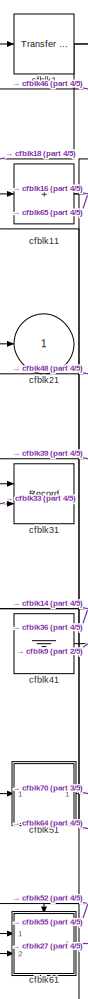
[diagram: root canvas - part 1/5, left side, full height]
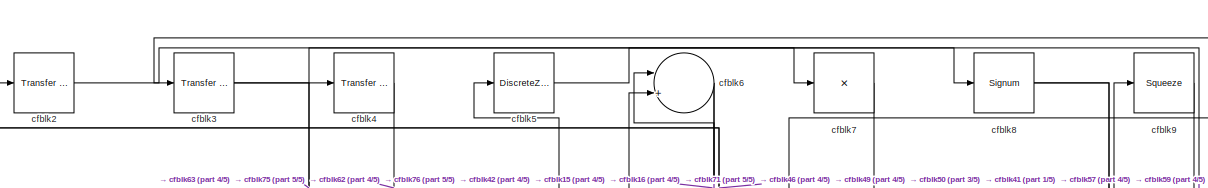
[diagram: root canvas - part 2/5, full width, top band]
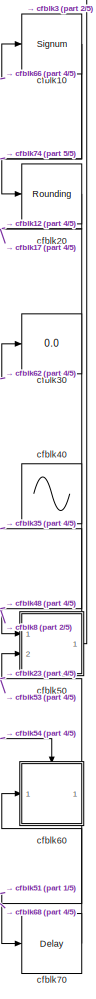
[diagram: root canvas - part 3/5, right side, full height]
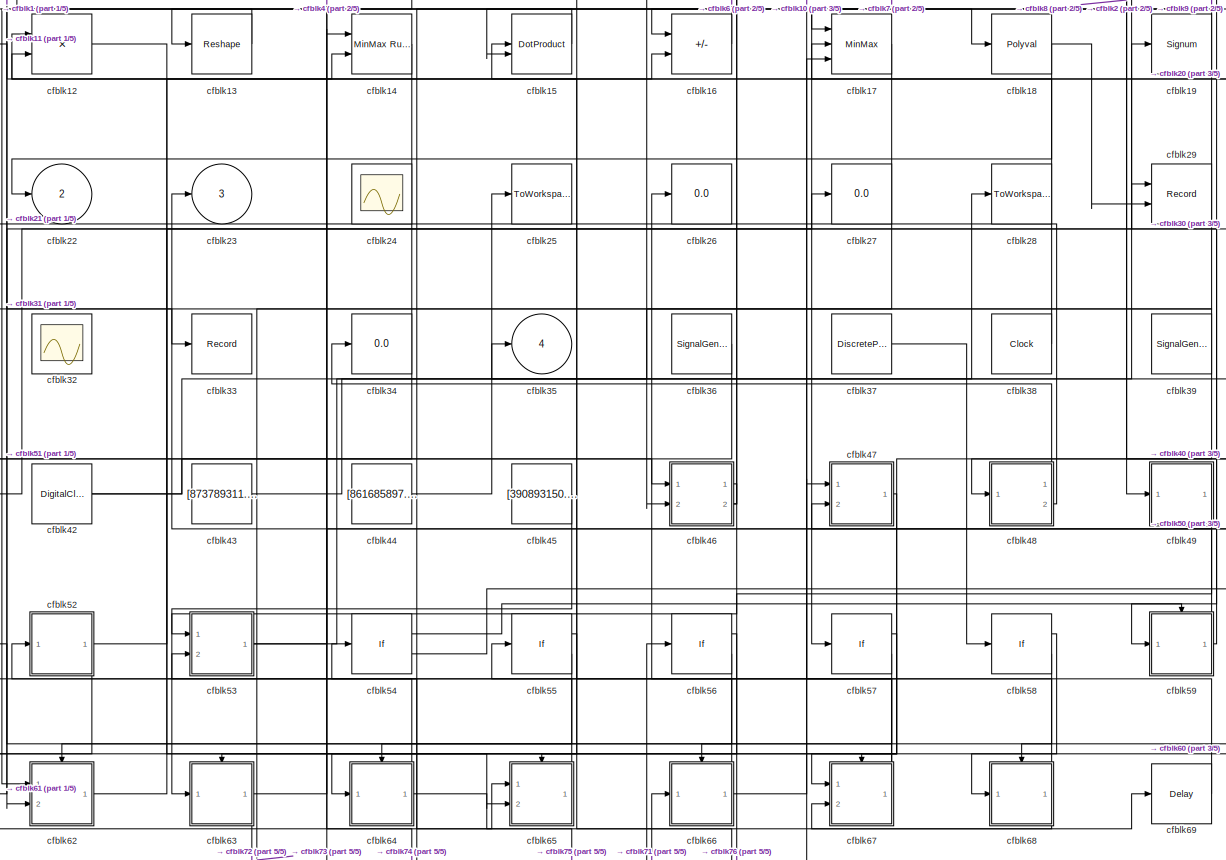
[diagram: root canvas - part 4/5, full width, middle band]
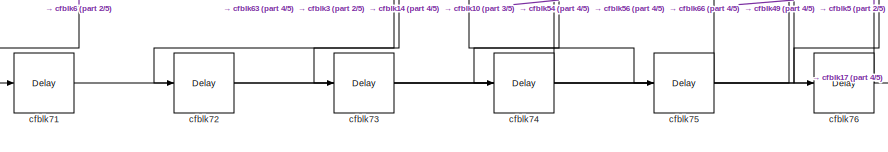
[diagram: root canvas - part 5/5, bottom left region]
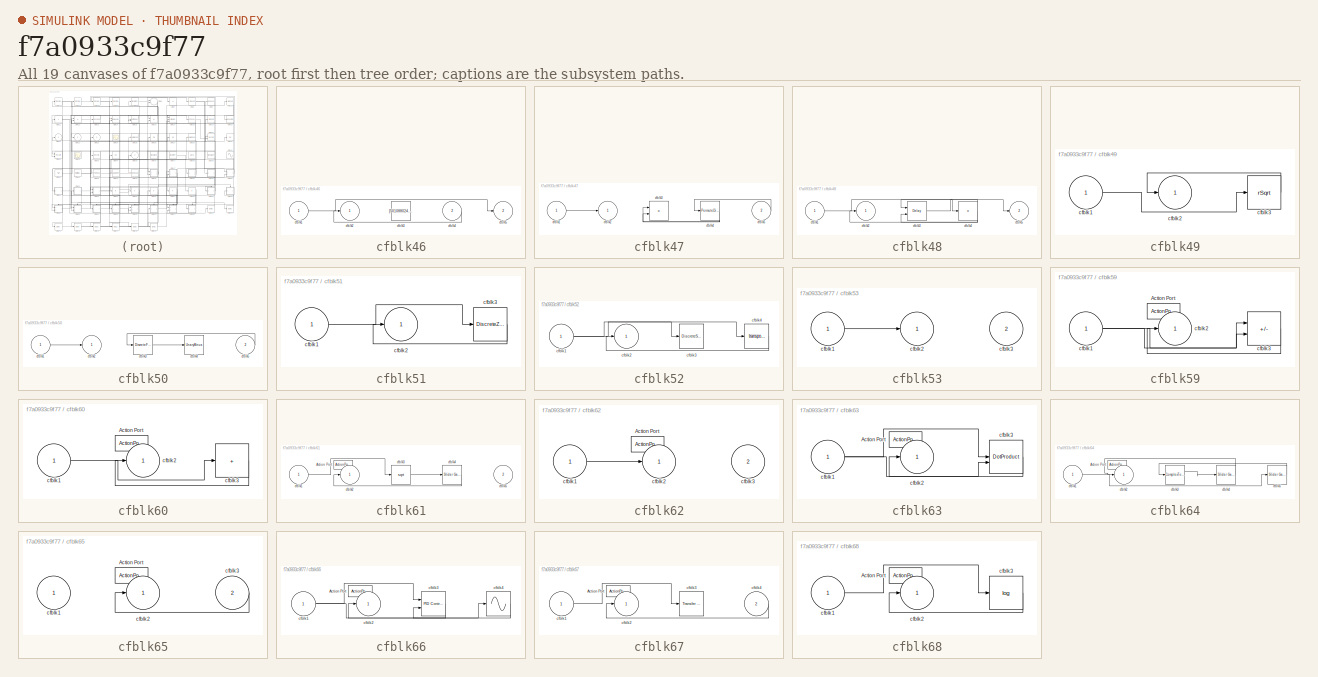
[diagram: thumbnail index - all 19 canvases of the model, root first then tree order]
MODEL slx_f7a0933c9f77
KIND model
CONFIG AbsTol = auto
CONFIG EnableMultiTasking = off
CONFIG FixedStep = auto
CONFIG MaxStep = auto
CONFIG MinStep = auto
CONFIG RelTol = 1e-3
CONFIG SampleTimeConstraint = Unconstrained
CONFIG SolverName = VariableStepAuto
CONFIG StartTime = 0.0
CONFIG StopTime = 10.0
BLOCK [Reference] cfblk1  REF=simulink/Discrete/Transfer Fcn
Real Zero
  Ports = [1, 1]
  SourceBlock = simulink/Discrete/Transfer Fcn\nReal Zero
  SourceProductBaseCode = SL
  SourceType = Transfer Fcn Real Zero
BLOCK [Signum] cfblk10
BLOCK [Sum] cfblk11
  IconShape = rectangular
  Inputs = +
  Ports = [1, 1]
BLOCK [Product] cfblk12
  Ports = [2, 1]
BLOCK [Reshape] cfblk13
  Ports = [1, 1]
BLOCK [Reference] cfblk14  REF=simulink/Math
Operations/MinMax
Running
Resettable
  Ports = [2, 1]
  SourceBlock = simulink/Math\nOperations/MinMax\nRunning\nResettable
  SourceProductBaseCode = SL
  SourceType = MinMax Running Resettable
BLOCK [DotProduct] cfblk15
  OutDataTypeStr = Inherit: Inherit via internal rule
BLOCK [Sum] cfblk16
  IconShape = rectangular
  Inputs = +-
  Ports = [2, 1]
BLOCK [MinMax] cfblk17
  Function = max
  Inputs = 3
  Ports = [3, 1]
BLOCK [Polyval] cfblk18
  Coefs = [ +2.081618890e-019, -1.441693666e-014, +4.719686976e-010, -8.536869453e-006, +1.621573104e-001, -8.087801117e+001 ]
BLOCK [Signum] cfblk19
BLOCK [Reference] cfblk2  REF=simulink/Discrete/Transfer Fcn
Real Zero
  Ports = [1, 1]
  SourceBlock = simulink/Discrete/Transfer Fcn\nReal Zero
  SourceProductBaseCode = SL
  SourceType = Transfer Fcn Real Zero
BLOCK [Rounding] cfblk20
BLOCK [Outport] cfblk21
BLOCK [Outport] cfblk22
  Port = 2
BLOCK [Outport] cfblk23
  Port = 3
BLOCK [Scope] cfblk24
  Floating = on
  NumInputPorts = 1
  Ports = []
BLOCK [ToWorkspace] cfblk25
  FixptAsFi = on
  MaxDataPoints = inf
  Ports = [1]
  SampleTime = -1
  SaveFormat = Timeseries
  VariableName = bncthao
BLOCK [Display] cfblk26
  Decimation = 1
  Ports = [1]
BLOCK [Display] cfblk27
  Decimation = 1
  Ports = [1]
BLOCK [ToWorkspace] cfblk28
  FixptAsFi = on
  MaxDataPoints = inf
  Ports = [1]
  SampleTime = -1
  SaveFormat = Timeseries
  VariableName = uvkmzuj
BLOCK [Record] cfblk29
  CompatibilityTag = XY
  FileSettingsInternal = {"entries":[{"content":{"excelSettings":{"content":{},"type":"Streamout.ExcelSettings"}},"type":"Streamout.FileSettingStorage","uuid":"8a58f875-e99c-4c1f-ba3d-aacceb243502"}],"packageUris":["http://schema.mathworks.com/mf0/streamout_blocks/R2020a"],"version":"1.0"}
  Layout = [1 1]
  Ports = [2]
  SignalsInternal = {"entries":[{"content":{"signals":[{"content":{"blockPath":["sampleModel355/cfblk29"],"channel":[],"dimensions":[1],"domain":"sampleModel355/cfblk29","lineColor":"#a2142f","plots":[1],"port":1,"sid":[""],"signalID":14784,"signalName":"cfblk59"},"type":"RecordBlkView.Signal","uuid":"3281cb25-1353-4514-a61d-ab6e319669d4"},{"content":{"blockPath":["sampleModel355/cfblk29"],"channel":[],"dimensions":[...<+385ch>
  VisualizationBindings = {"xyplotplugin":{"info":[{"series":[{"bindingParametersList":[{"parameter":"X-Axis","signalID":14784,"signalName":"cfblk59"},{"parameter":"Y-Axis","signalID":14788,"signalName":"cfblk18"}],"seriesID":4821}],"subplotID":1}]}}
BLOCK [Reference] cfblk3  REF=simulink/Discrete/Transfer Fcn
Lead or Lag
  Ports = [1, 1]
  SourceBlock = simulink/Discrete/Transfer Fcn\nLead or Lag
  SourceProductBaseCode = SL
  SourceType = Lead or Lag Compensator
BLOCK [Display] cfblk30
  Decimation = 1
  Ports = [1]
BLOCK [Record] cfblk31
  CompatibilityTag = XY
  FileSettingsInternal = {"entries":[{"content":{"excelSettings":{"content":{},"type":"Streamout.ExcelSettings"}},"type":"Streamout.FileSettingStorage","uuid":"e0b827af-2ce3-47de-8a80-2d3021881471"}],"packageUris":["http://schema.mathworks.com/mf0/streamout_blocks/R2020a"],"version":"1.0"}
  Layout = [1 1]
  Ports = [2]
  SignalsInternal = {"entries":[{"content":{"signals":[{"content":{"blockPath":["sampleModel355/cfblk31"],"channel":[],"dimensions":[1],"domain":"sampleModel355/cfblk31","lineColor":"#a2142f","plots":[1],"port":1,"sid":[""],"signalID":14792,"signalName":"cfblk39"},"type":"RecordBlkView.Signal","uuid":"d5c8587e-9d0d-4856-a276-2f59d04580e3"},{"content":{"blockPath":["sampleModel355/cfblk31"],"channel":[],"dimensions":[...<+384ch>
  VisualizationBindings = {"xyplotplugin":{"info":[{"series":[{"bindingParametersList":[{"parameter":"X-Axis","signalID":14792,"signalName":"cfblk39"},{"parameter":"Y-Axis","signalID":14796,"signalName":"cfblk1"}],"seriesID":38022}],"subplotID":1}]}}
BLOCK [Scope] cfblk32
  Floating = on
  NumInputPorts = 1
  Ports = []
BLOCK [Record] cfblk33
  FileSettingsInternal = {"entries":[{"content":{"excelSettings":{"content":{},"type":"Streamout.ExcelSettings"}},"type":"Streamout.FileSettingStorage","uuid":"c00efc17-803b-4ade-8a07-207905a6f958"}],"packageUris":["http://schema.mathworks.com/mf0/streamout_blocks/R2020a"],"version":"1.0"}
  Ports = [1]
  SignalsInternal = {"entries":[{"content":{"signals":[{"content":{"blockPath":["sampleModel355/cfblk33"],"channel":[],"dimensions":[1],"domain":"sampleModel355/cfblk33","lineColor":"#ff6929","plots":[1],"port":1,"sid":[""],"signalID":14800,"signalName":"cfblk1"},"type":"RecordBlkView.Signal","uuid":"a33f1148-dedf-40b2-8a89-151bff7921ef"}]},"type":"RecordBlkView.InputSignals","uuid":"1131e995-cc5f-4030-b347-0cd77ca9c...<+97ch>
  VisualizationBindings = {"sparklinesplugin":{"info":[{"bindingParametersList":[],"subplotID":1}]}}
BLOCK [Display] cfblk34
  Decimation = 1
  Ports = [1]
BLOCK [Outport] cfblk35
  Port = 4
BLOCK [SignalGenerator] cfblk36
  Amplitude = [571784640.695162]
  Ports = [0, 1]
  WaveForm = square
BLOCK [DiscretePulseGenerator] cfblk37
  Amplitude = [-715722832.893154]
  Period = [69656277.963047]
  PhaseDelay = [1.000000]
  Ports = [0, 1]
  PulseType = Time based
  PulseWidth = 5
BLOCK [Clock] cfblk38
BLOCK [SignalGenerator] cfblk39
  Amplitude = [736063018.120094]
  Ports = [0, 1]
  WaveForm = sawtooth
BLOCK [Reference] cfblk4  REF=simulink/Discrete/Transfer Fcn
First Order
  Ports = [1, 1]
  SourceBlock = simulink/Discrete/Transfer Fcn\nFirst Order
  SourceProductBaseCode = SL
  SourceType = First Order Transfer Fcn
BLOCK [Sin] cfblk40
  Amplitude = [16568811.325818]
  Bias = [-756437996.866727]
  Ports = [0, 1]
  SampleTime = 0
BLOCK [Ground] cfblk41
BLOCK [DigitalClock] cfblk42
BLOCK [Constant] cfblk43
  SampleTime = 1
  Value = [873789311.508556]
BLOCK [Constant] cfblk44
  SampleTime = 1
  Value = [861685897.308643]
BLOCK [Constant] cfblk45
  SampleTime = 1
  Value = [390893150.615456]
BLOCK [SubSystem] cfblk46
  Ports = [2, 2]
  RequestExecContextInheritance = off
BLOCK [Inport] cfblk46/cfblk1
BLOCK [Outport] cfblk46/cfblk2
BLOCK [Constant] cfblk46/cfblk3
  SampleTime = 1
  Value = [501088024.561034]
BLOCK [Inport] cfblk46/cfblk4
  Port = 2
BLOCK [Outport] cfblk46/cfblk5
  Port = 2
BLOCK [SubSystem] cfblk47
  Ports = [2, 1]
  RequestExecContextInheritance = off
BLOCK [Inport] cfblk47/cfblk1
BLOCK [Outport] cfblk47/cfblk2
BLOCK [Product] cfblk47/cfblk3
  Inputs = **
  Ports = [2, 1]
BLOCK [PermuteDimensions] cfblk47/cfblk4
BLOCK [Inport] cfblk47/cfblk5
  Port = 2
BLOCK [SubSystem] cfblk48
  Ports = [1, 2]
  RequestExecContextInheritance = off
BLOCK [Inport] cfblk48/cfblk1
BLOCK [Outport] cfblk48/cfblk2
BLOCK [Delay] cfblk48/cfblk3
  InputPortMap = u0,e6
  Ports = [2, 1]
  SampleTime = 1
  ShowEnablePort = on
BLOCK [Product] cfblk48/cfblk4
  Inputs = *
  Ports = [1, 1]
BLOCK [Outport] cfblk48/cfblk5
  Port = 2
BLOCK [SubSystem] cfblk49
  Ports = [1, 1]
  RequestExecContextInheritance = off
BLOCK [Inport] cfblk49/cfblk1
BLOCK [Outport] cfblk49/cfblk2
BLOCK [Sqrt] cfblk49/cfblk3
  AlgorithmType = Newton-Raphson
  Operator = rSqrt
BLOCK [DiscreteZeroPole] cfblk5
  Gain = 1
  Poles = [0 0.5]
BLOCK [SubSystem] cfblk50
  Ports = [2, 1]
  RequestExecContextInheritance = off
BLOCK [Inport] cfblk50/cfblk1
BLOCK [Outport] cfblk50/cfblk2
BLOCK [DiscreteFilter] cfblk50/cfblk3
  InputPortMap = u0
  Ports = [1, 1]
  SampleTime = 1
BLOCK [UnaryMinus] cfblk50/cfblk4
BLOCK [Inport] cfblk50/cfblk5
  Port = 2
BLOCK [SubSystem] cfblk51
  Ports = [1, 1]
  RequestExecContextInheritance = off
BLOCK [Inport] cfblk51/cfblk1
BLOCK [Outport] cfblk51/cfblk2
BLOCK [DiscreteZeroPole] cfblk51/cfblk3
  Gain = 1
  Poles = [0 0.5]
BLOCK [SubSystem] cfblk52
  Ports = [1, 1]
  RequestExecContextInheritance = off
BLOCK [Inport] cfblk52/cfblk1
BLOCK [Outport] cfblk52/cfblk2
BLOCK [DiscreteStateSpace] cfblk52/cfblk3
BLOCK [Math] cfblk52/cfblk4
  Operator = transpose
  Ports = [1, 1]
BLOCK [SubSystem] cfblk53
  Ports = [2, 1]
  RequestExecContextInheritance = off
BLOCK [Inport] cfblk53/cfblk1
BLOCK [Outport] cfblk53/cfblk2
BLOCK [Inport] cfblk53/cfblk3
  Port = 2
BLOCK [If] cfblk54
  IfExpression = u1 >= 0
  Ports = [1, 2]
  SampleTime = 1
BLOCK [If] cfblk55
  IfExpression = u1 >= 0
  Ports = [1, 2]
  SampleTime = 1
BLOCK [If] cfblk56
  IfExpression = u1 >= 0
  Ports = [1, 2]
  SampleTime = 1
BLOCK [If] cfblk57
  IfExpression = u1 >= 0
  Ports = [1, 2]
  SampleTime = 1
BLOCK [If] cfblk58
  IfExpression = u1 >= 0
  Ports = [1, 2]
  SampleTime = 1
BLOCK [SubSystem] cfblk59
  Ports = [1, 1, 0, 0, 0, 0, 0, 1]
  RequestExecContextInheritance = off
  TreatAsAtomicUnit = on
BLOCK [ActionPort] cfblk59/Action Port
  ActionPortLabel = if(u1 >= 0)
BLOCK [Inport] cfblk59/cfblk1
BLOCK [Outport] cfblk59/cfblk2
BLOCK [Sum] cfblk59/cfblk3
  IconShape = rectangular
  Inputs = --
  Ports = [2, 1]
BLOCK [Sum] cfblk6
  Inputs = |++
  Ports = [2, 1]
BLOCK [SubSystem] cfblk60
  Ports = [1, 1, 0, 0, 0, 0, 0, 1]
  RequestExecContextInheritance = off
  TreatAsAtomicUnit = on
BLOCK [ActionPort] cfblk60/Action Port
  ActionPortLabel = else
BLOCK [Inport] cfblk60/cfblk1
BLOCK [Outport] cfblk60/cfblk2
BLOCK [Sum] cfblk60/cfblk3
  IconShape = rectangular
  Inputs = +
  Ports = [1, 1]
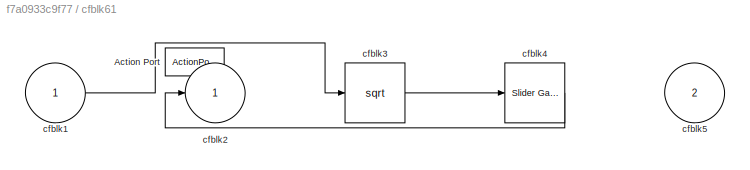
BLOCK [SubSystem] cfblk61
  Ports = [2, 1, 0, 0, 0, 0, 0, 1]
  RequestExecContextInheritance = off
  TreatAsAtomicUnit = on
BLOCK [ActionPort] cfblk61/Action Port
  ActionPortLabel = if(u1 >= 0)
BLOCK [Inport] cfblk61/cfblk1
BLOCK [Outport] cfblk61/cfblk2
BLOCK [Sqrt] cfblk61/cfblk3
BLOCK [Reference] cfblk61/cfblk4  REF=simulink/Math
Operations/Slider
Gain
  Ports = [1, 1]
  SourceBlock = simulink/Math\nOperations/Slider\nGain
  SourceProductBaseCode = SL
  SourceType = Slider Gain
BLOCK [Inport] cfblk61/cfblk5
  Port = 2
BLOCK [SubSystem] cfblk62
  Ports = [2, 1, 0, 0, 0, 0, 0, 1]
  RequestExecContextInheritance = off
  TreatAsAtomicUnit = on
BLOCK [ActionPort] cfblk62/Action Port
  ActionPortLabel = else
BLOCK [Inport] cfblk62/cfblk1
BLOCK [Outport] cfblk62/cfblk2
BLOCK [Inport] cfblk62/cfblk3
  Port = 2
BLOCK [SubSystem] cfblk63
  Ports = [1, 1, 0, 0, 0, 0, 0, 1]
  RequestExecContextInheritance = off
  TreatAsAtomicUnit = on
BLOCK [ActionPort] cfblk63/Action Port
  ActionPortLabel = if(u1 >= 0)
BLOCK [Inport] cfblk63/cfblk1
BLOCK [Outport] cfblk63/cfblk2
BLOCK [DotProduct] cfblk63/cfblk3
  OutDataTypeStr = Inherit: Inherit via internal rule
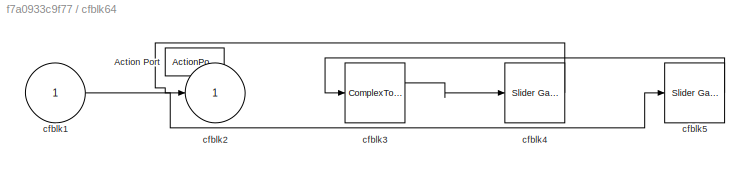
BLOCK [SubSystem] cfblk64
  Ports = [1, 1, 0, 0, 0, 0, 0, 1]
  RequestExecContextInheritance = off
  TreatAsAtomicUnit = on
BLOCK [ActionPort] cfblk64/Action Port
  ActionPortLabel = else
BLOCK [Inport] cfblk64/cfblk1
BLOCK [Outport] cfblk64/cfblk2
BLOCK [ComplexToRealImag] cfblk64/cfblk3
  Ports = [1, 2]
BLOCK [Reference] cfblk64/cfblk4  REF=simulink/Math
Operations/Slider
Gain
  Ports = [1, 1]
  SourceBlock = simulink/Math\nOperations/Slider\nGain
  SourceProductBaseCode = SL
  SourceType = Slider Gain
BLOCK [Reference] cfblk64/cfblk5  REF=simulink/Math
Operations/Slider
Gain
  Ports = [1, 1]
  SourceBlock = simulink/Math\nOperations/Slider\nGain
  SourceProductBaseCode = SL
  SourceType = Slider Gain
BLOCK [SubSystem] cfblk65
  Ports = [2, 1, 0, 0, 0, 0, 0, 1]
  RequestExecContextInheritance = off
  TreatAsAtomicUnit = on
BLOCK [ActionPort] cfblk65/Action Port
  ActionPortLabel = if(u1 >= 0)
BLOCK [Inport] cfblk65/cfblk1
BLOCK [Outport] cfblk65/cfblk2
BLOCK [Inport] cfblk65/cfblk3
  Port = 2
BLOCK [SubSystem] cfblk66
  Ports = [1, 1, 0, 0, 0, 0, 0, 1]
  RequestExecContextInheritance = off
  TreatAsAtomicUnit = on
BLOCK [ActionPort] cfblk66/Action Port
  ActionPortLabel = else
BLOCK [Inport] cfblk66/cfblk1
BLOCK [Outport] cfblk66/cfblk2
BLOCK [Reference] cfblk66/cfblk3  REF=slpidlib/PID Controller (2DOF)
  Ports = [2, 1]
  SourceBlock = slpidlib/PID Controller (2DOF)
  SourceProductBaseCode = SL
  SourceType = PID 2dof
BLOCK [Sin] cfblk66/cfblk4
  Ports = [1, 1]
  SampleTime = 0
  TimeSource = Use external signal
BLOCK [SubSystem] cfblk67
  Ports = [2, 1, 0, 0, 0, 0, 0, 1]
  RequestExecContextInheritance = off
  TreatAsAtomicUnit = on
BLOCK [ActionPort] cfblk67/Action Port
  ActionPortLabel = if(u1 >= 0)
BLOCK [Inport] cfblk67/cfblk1
BLOCK [Outport] cfblk67/cfblk2
BLOCK [Reference] cfblk67/cfblk3  REF=simulink/Discrete/Transfer Fcn
First Order
  Ports = [1, 1]
  SourceBlock = simulink/Discrete/Transfer Fcn\nFirst Order
  SourceProductBaseCode = SL
  SourceType = First Order Transfer Fcn
BLOCK [Inport] cfblk67/cfblk4
  Port = 2
BLOCK [SubSystem] cfblk68
  Ports = [1, 1, 0, 0, 0, 0, 0, 1]
  RequestExecContextInheritance = off
  TreatAsAtomicUnit = on
BLOCK [ActionPort] cfblk68/Action Port
  ActionPortLabel = else
BLOCK [Inport] cfblk68/cfblk1
BLOCK [Outport] cfblk68/cfblk2
BLOCK [Math] cfblk68/cfblk3
  Operator = log
  Ports = [1, 1]
BLOCK [Delay] cfblk69
  InputPortMap = u0
  Ports = [1, 1]
  SampleTime = 1
BLOCK [Product] cfblk7
  Inputs = *
  Ports = [1, 1]
BLOCK [Delay] cfblk70
  InputPortMap = u0
  Ports = [1, 1]
  SampleTime = 1
BLOCK [Delay] cfblk71
  InputPortMap = u0
  Ports = [1, 1]
  SampleTime = 1
BLOCK [Delay] cfblk72
  InputPortMap = u0
  Ports = [1, 1]
  SampleTime = 1
BLOCK [Delay] cfblk73
  InputPortMap = u0
  Ports = [1, 1]
  SampleTime = 1
BLOCK [Delay] cfblk74
  InputPortMap = u0
  Ports = [1, 1]
  SampleTime = 1
BLOCK [Delay] cfblk75
  InputPortMap = u0
  Ports = [1, 1]
  SampleTime = 1
BLOCK [Delay] cfblk76
  InputPortMap = u0
  Ports = [1, 1]
  SampleTime = 1
BLOCK [Signum] cfblk8
BLOCK [Squeeze] cfblk9
NET cfblk10:1 -> cfblk20:1, cfblk74:1
NET cfblk11:1 -> cfblk16:2, cfblk65:1
LINE cfblk12:1 -> cfblk65:2
LINE cfblk13:1 -> cfblk62:1
LINE cfblk14:1 -> cfblk51:1
LINE cfblk15:1 -> cfblk13:1
LINE cfblk16:1 -> cfblk6:1
LINE cfblk17:1 -> cfblk73:1
NET cfblk18:1 -> cfblk22:1, cfblk29:2
NET cfblk19:1 -> cfblk17:1, cfblk46:2
NET cfblk1:1 -> cfblk18:1, cfblk31:2, cfblk33:1
LINE cfblk20:1 -> cfblk17:2
LINE cfblk2:1 -> cfblk59:1
LINE cfblk36:1 -> cfblk61:1
LINE cfblk37:1 -> cfblk58:1
LINE cfblk38:1 -> cfblk12:1
NET cfblk39:1 -> cfblk31:1, cfblk67:1
NET cfblk3:1 -> cfblk75:1, cfblk7:1
NET cfblk40:1 -> cfblk12:2, cfblk48:1
LINE cfblk41:1 -> cfblk9:1
NET cfblk42:1 -> cfblk46:1, cfblk6:2
LINE cfblk43:1 -> cfblk19:1
LINE cfblk44:1 -> cfblk25:1
LINE cfblk45:1 -> cfblk63:1
LINE cfblk46/cfblk1:1 -> cfblk46/cfblk5:1
LINE cfblk46/cfblk4:1 -> cfblk46/cfblk2:1
LINE cfblk46:1 -> cfblk53:1
NET cfblk46:2 -> cfblk1:1, cfblk2:1
LINE cfblk47/cfblk1:1 -> cfblk47/cfblk2:1
NET cfblk47/cfblk4:1 -> cfblk47/cfblk3:1, cfblk47/cfblk3:2
LINE cfblk47/cfblk5:1 -> cfblk47/cfblk4:1
LINE cfblk47:1 -> cfblk64:1
LINE cfblk48/cfblk1:1 -> cfblk48/cfblk4:1
LINE cfblk48/cfblk3:1 -> cfblk48/cfblk5:1
NET cfblk48/cfblk4:1 -> cfblk48/cfblk2:1, cfblk48/cfblk3:1, cfblk48/cfblk3:2
LINE cfblk48:1 -> cfblk34:1
LINE cfblk48:2 -> cfblk21:1
LINE cfblk49/cfblk1:1 -> cfblk49/cfblk3:1
LINE cfblk49/cfblk3:1 -> cfblk49/cfblk2:1
LINE cfblk49:1 -> cfblk76:1
LINE cfblk4:1 -> cfblk62:2
LINE cfblk50/cfblk1:1 -> cfblk50/cfblk2:1
LINE cfblk50/cfblk3:1 -> cfblk50/cfblk4:1
LINE cfblk50/cfblk5:1 -> cfblk50/cfblk3:1
NET cfblk50:1 -> cfblk35:1, cfblk3:1
LINE cfblk51/cfblk1:1 -> cfblk51/cfblk3:1
LINE cfblk51/cfblk3:1 -> cfblk51/cfblk2:1
LINE cfblk51:1 -> cfblk70:1
NET cfblk52/cfblk1:1 -> cfblk52/cfblk3:1, cfblk52/cfblk4:1
LINE cfblk52/cfblk4:1 -> cfblk52/cfblk2:1
NET cfblk52:1 -> cfblk14:2, cfblk61:2
LINE cfblk53/cfblk1:1 -> cfblk53/cfblk2:1
NET cfblk53:1 -> cfblk28:1, cfblk50:2
LINE cfblk54:1 -> cfblk59:ifaction
LINE cfblk54:2 -> cfblk60:ifaction
LINE cfblk55:1 -> cfblk61:ifaction
LINE cfblk55:2 -> cfblk62:ifaction
LINE cfblk56:1 -> cfblk63:ifaction
LINE cfblk56:2 -> cfblk64:ifaction
LINE cfblk57:1 -> cfblk65:ifaction
LINE cfblk57:2 -> cfblk66:ifaction
LINE cfblk58:1 -> cfblk67:ifaction
LINE cfblk58:2 -> cfblk68:ifaction
NET cfblk59/cfblk1:1 -> cfblk59/cfblk3:1, cfblk59/cfblk3:2
LINE cfblk59/cfblk3:1 -> cfblk59/cfblk2:1
NET cfblk59:1 -> cfblk29:1, cfblk47:2
LINE cfblk5:1 -> cfblk8:1
LINE cfblk60/cfblk1:1 -> cfblk60/cfblk3:1
LINE cfblk60/cfblk3:1 -> cfblk60/cfblk2:1
NET cfblk60:1 -> cfblk23:1, cfblk68:1
LINE cfblk61/cfblk1:1 -> cfblk61/cfblk3:1
LINE cfblk61/cfblk3:1 -> cfblk61/cfblk4:1
LINE cfblk61/cfblk4:1 -> cfblk61/cfblk2:1
LINE cfblk61:1 -> cfblk27:1
LINE cfblk62/cfblk1:1 -> cfblk62/cfblk2:1
LINE cfblk62:1 -> cfblk30:1
NET cfblk63/cfblk1:1 -> cfblk63/cfblk3:1, cfblk63/cfblk3:2
LINE cfblk63/cfblk3:1 -> cfblk63/cfblk2:1
NET cfblk63:1 -> cfblk4:1, cfblk72:1
LINE cfblk64/cfblk1:1 -> cfblk64/cfblk5:1
LINE cfblk64/cfblk3:1 -> cfblk64/cfblk4:1
LINE cfblk64/cfblk4:1 -> cfblk64/cfblk2:1
LINE cfblk64/cfblk5:1 -> cfblk64/cfblk3:1
NET cfblk64:1 -> cfblk11:1, cfblk69:1
LINE cfblk65/cfblk3:1 -> cfblk65/cfblk2:1
LINE cfblk65:1 -> cfblk52:1
NET cfblk66/cfblk1:1 -> cfblk66/cfblk3:1, cfblk66/cfblk4:1
LINE cfblk66/cfblk3:1 -> cfblk66/cfblk2:1
LINE cfblk66/cfblk4:1 -> cfblk66/cfblk3:2
NET cfblk66:1 -> cfblk10:1, cfblk26:1
LINE cfblk67/cfblk1:1 -> cfblk67/cfblk3:1
LINE cfblk67/cfblk4:1 -> cfblk67/cfblk2:1
NET cfblk67:1 -> cfblk15:1, cfblk53:2
LINE cfblk68/cfblk1:1 -> cfblk68/cfblk3:1
LINE cfblk68/cfblk3:1 -> cfblk68/cfblk2:1
NET cfblk68:1 -> cfblk55:1, cfblk67:2
LINE cfblk69:1 -> cfblk47:1
NET cfblk6:1 -> cfblk15:2, cfblk71:1
LINE cfblk70:1 -> cfblk60:1
LINE cfblk71:1 -> cfblk66:1
LINE cfblk72:1 -> cfblk17:3
LINE cfblk73:1 -> cfblk56:1
LINE cfblk74:1 -> cfblk14:1
LINE cfblk75:1 -> cfblk54:1
LINE cfblk76:1 -> cfblk5:1
LINE cfblk7:1 -> cfblk16:1
NET cfblk8:1 -> cfblk49:1, cfblk50:1
LINE cfblk9:1 -> cfblk57:1
note: NET lines group one-source signal fan-out (src -> all destinations, sorted); 1:1 wires keep LINE
